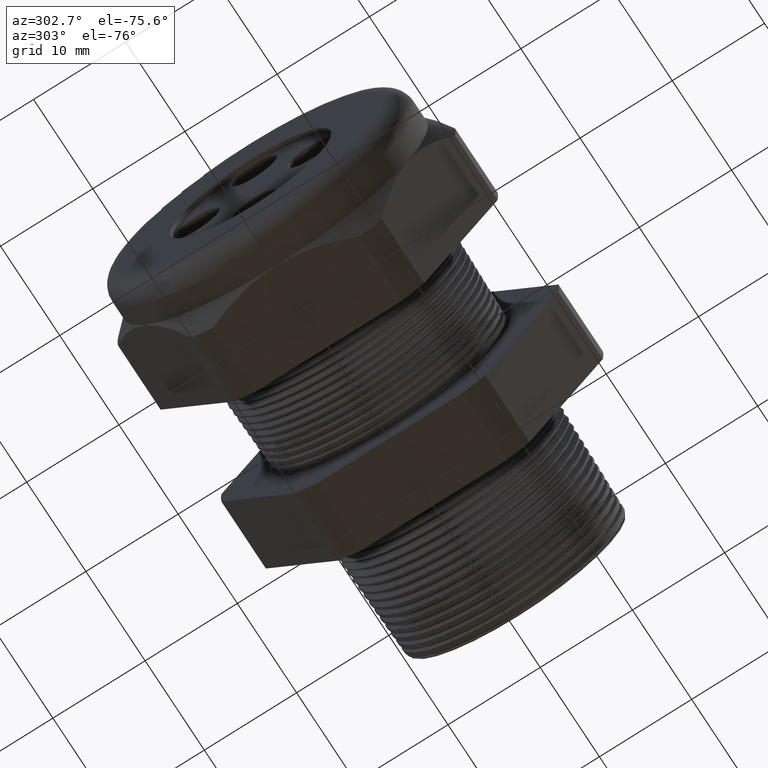
[diagram: clean part render]
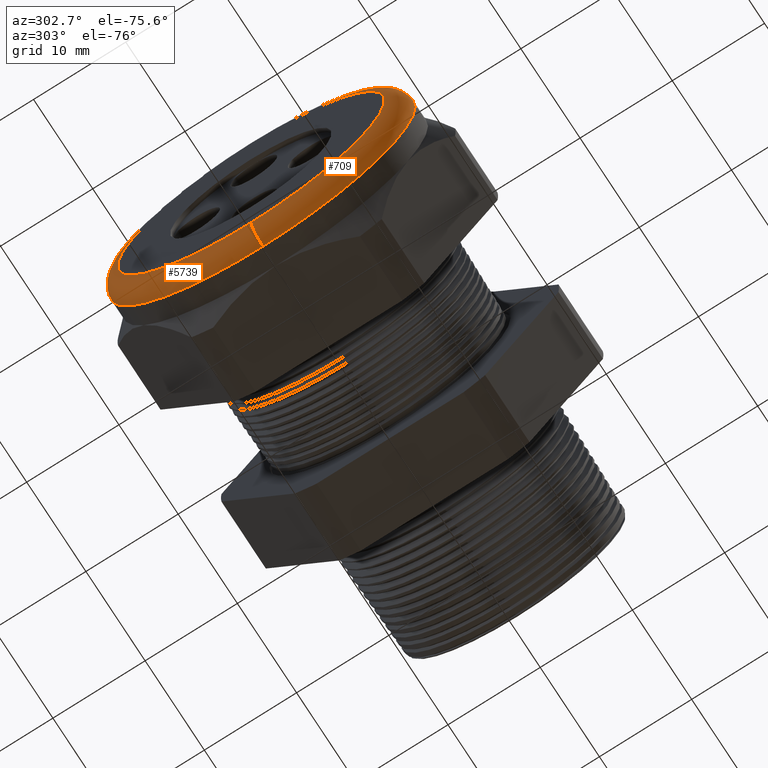
[diagram: same view with one multi-face feature highlighted, each face labeled with its STEP entity id]
A machine part, auxiliary view. The highlighted faces form ONE feature: a constant-radius fillet chain: 2 tangent blend faces with common blend radius 2.032 mm. The faces share edges in the B-rep.
Their STEP definitions:
[1] entity #5739 (Torus):
#4120 = CIRCLE ( 'NONE', #4182, 0.5699999999999999500 ) ;
#4121 = CARTESIAN_POINT ( 'NONE',  ( -1.529999999999999800, 0.0000000000000000000, 0.5699999999999999500 ) ) ;
#4156 = CARTESIAN_POINT ( 'NONE',  ( -1.449999999999999700, 7.960204194457794200E-017, 0.6499999999999999100 ) ) ;
#4162 = CARTESIAN_POINT ( 'NONE',  ( -1.529999999999999800, 7.470345474798854000E-017, -0.5699999999999999500 ) ) ;
#4163 = DIRECTION ( 'NONE',  ( 0.0000000000000000000, -1.224646799147353900E-016, 1.000000000000000000 ) ) ;
#4164 = DIRECTION ( 'NONE',  ( 0.0000000000000000000, 1.000000000000000000, 1.224646799147353200E-016 ) ) ;
#4165 = CARTESIAN_POINT ( 'NONE',  ( -1.449999999999999700, 6.980486755139912600E-017, -0.5699999999999999500 ) ) ;
#4166 = AXIS2_PLACEMENT_3D ( 'NONE', #4165, #4164, #4163 ) ;
#4167 = CIRCLE ( 'NONE', #4166, 0.07999999999999996000 ) ;
#4179 = DIRECTION ( 'NONE',  ( 0.0000000000000000000, 0.0000000000000000000, 1.000000000000000000 ) ) ;
#4180 = DIRECTION ( 'NONE',  ( -1.000000000000000000, 0.0000000000000000000, 0.0000000000000000000 ) ) ;
#4181 = CARTESIAN_POINT ( 'NONE',  ( -1.529999999999999800, 0.0000000000000000000, 0.0000000000000000000 ) ) ;
#4182 = AXIS2_PLACEMENT_3D ( 'NONE', #4181, #4180, #4179 ) ;
#4185 = DIRECTION ( 'NONE',  ( 0.0000000000000000000, 0.0000000000000000000, 1.000000000000000000 ) ) ;
#4186 = DIRECTION ( 'NONE',  ( -1.000000000000000000, 0.0000000000000000000, 0.0000000000000000000 ) ) ;
#4187 = AXIS2_PLACEMENT_3D ( 'NONE', #4195, #4186, #4185 ) ;
#4188 = TOROIDAL_SURFACE ( 'NONE', #4187, 0.5699999999999999500, 0.08000000000000000200 ) ;
#4189 = FACE_OUTER_BOUND ( 'NONE', #5733, .T. ) ;
#4195 = CARTESIAN_POINT ( 'NONE',  ( -1.449999999999999700, 0.0000000000000000000, 0.0000000000000000000 ) ) ;
#4207 = DIRECTION ( 'NONE',  ( 0.0000000000000000000, 0.0000000000000000000, 1.000000000000000000 ) ) ;
#4208 = DIRECTION ( 'NONE',  ( 1.000000000000000000, 0.0000000000000000000, 0.0000000000000000000 ) ) ;
#4209 = CARTESIAN_POINT ( 'NONE',  ( -1.449999999999999700, 0.0000000000000000000, 0.0000000000000000000 ) ) ;
#4210 = AXIS2_PLACEMENT_3D ( 'NONE', #4209, #4208, #4207 ) ;
#4211 = CIRCLE ( 'NONE', #4210, 0.6499999999999999100 ) ;
#4212 = CARTESIAN_POINT ( 'NONE',  ( -1.449999999999999700, 0.0000000000000000000, -0.6499999999999999100 ) ) ;
#4288 = DIRECTION ( 'NONE',  ( 0.0000000000000000000, 0.0000000000000000000, -1.000000000000000000 ) ) ;
#4289 = DIRECTION ( 'NONE',  ( 0.0000000000000000000, -1.000000000000000000, 0.0000000000000000000 ) ) ;
#4290 = CARTESIAN_POINT ( 'NONE',  ( -1.449999999999999700, 0.0000000000000000000, 0.5699999999999999500 ) ) ;
#4291 = AXIS2_PLACEMENT_3D ( 'NONE', #4290, #4289, #4288 ) ;
#4292 = CIRCLE ( 'NONE', #4291, 0.07999999999999996000 ) ;
#5694 = ORIENTED_EDGE ( 'NONE', *, *, #5783, .F. ) ;
#5708 = VERTEX_POINT ( 'NONE', #4121 ) ;
#5709 = EDGE_CURVE ( 'NONE', #5708, #5721, #4120, .T. ) ;
#5715 = ORIENTED_EDGE ( 'NONE', *, *, #5718, .T. ) ;
#5718 = EDGE_CURVE ( 'NONE', #5728, #5721, #4167, .T. ) ;
#5720 = ORIENTED_EDGE ( 'NONE', *, *, #5709, .F. ) ;
#5721 = VERTEX_POINT ( 'NONE', #4162 ) ;
#5723 = VERTEX_POINT ( 'NONE', #4156 ) ;
#5728 = VERTEX_POINT ( 'NONE', #4212 ) ;
#5731 = EDGE_CURVE ( 'NONE', #5728, #5723, #4211, .T. ) ;
#5733 = EDGE_LOOP ( 'NONE', ( #5735, #5715, #5720, #5694 ) ) ;
#5735 = ORIENTED_EDGE ( 'NONE', *, *, #5731, .F. ) ;
#5739 = ADVANCED_FACE ( 'NONE', ( #4189 ), #4188, .T. ) ;
#5783 = EDGE_CURVE ( 'NONE', #5723, #5708, #4292, .T. ) ;
[2] entity #709 (Torus):
#709 = ADVANCED_FACE ( 'NONE', ( #2675 ), #2673, .T. ) ;
#710 = EDGE_LOOP ( 'NONE', ( #711, #712, #713, #714 ) ) ;
#711 = ORIENTED_EDGE ( 'NONE', *, *, #5718, .F. ) ;
#712 = ORIENTED_EDGE ( 'NONE', *, *, #5698, .F. ) ;
#713 = ORIENTED_EDGE ( 'NONE', *, *, #5783, .T. ) ;
#714 = ORIENTED_EDGE ( 'NONE', *, *, #5734, .F. ) ;
#2673 = TOROIDAL_SURFACE ( 'NONE', #2674, 0.5699999999999999500, 0.08000000000000000200 ) ;
#2674 = AXIS2_PLACEMENT_3D ( 'NONE', #2679, #2737, #2736 ) ;
#2675 = FACE_OUTER_BOUND ( 'NONE', #710, .T. ) ;
#2679 = CARTESIAN_POINT ( 'NONE',  ( -1.449999999999999700, 0.0000000000000000000, 0.0000000000000000000 ) ) ;
#2736 = DIRECTION ( 'NONE',  ( 0.0000000000000000000, 0.0000000000000000000, 1.000000000000000000 ) ) ;
#2737 = DIRECTION ( 'NONE',  ( -1.000000000000000000, 0.0000000000000000000, 0.0000000000000000000 ) ) ;
#4121 = CARTESIAN_POINT ( 'NONE',  ( -1.529999999999999800, 0.0000000000000000000, 0.5699999999999999500 ) ) ;
#4129 = DIRECTION ( 'NONE',  ( 0.0000000000000000000, 0.0000000000000000000, 1.000000000000000000 ) ) ;
#4130 = DIRECTION ( 'NONE',  ( 1.000000000000000000, 0.0000000000000000000, 0.0000000000000000000 ) ) ;
#4131 = CARTESIAN_POINT ( 'NONE',  ( -1.449999999999999700, 0.0000000000000000000, 0.0000000000000000000 ) ) ;
#4132 = AXIS2_PLACEMENT_3D ( 'NONE', #4131, #4130, #4129 ) ;
#4133 = CIRCLE ( 'NONE', #4132, 0.6499999999999999100 ) ;
#4156 = CARTESIAN_POINT ( 'NONE',  ( -1.449999999999999700, 7.960204194457794200E-017, 0.6499999999999999100 ) ) ;
#4162 = CARTESIAN_POINT ( 'NONE',  ( -1.529999999999999800, 7.470345474798854000E-017, -0.5699999999999999500 ) ) ;
#4163 = DIRECTION ( 'NONE',  ( 0.0000000000000000000, -1.224646799147353900E-016, 1.000000000000000000 ) ) ;
#4164 = DIRECTION ( 'NONE',  ( 0.0000000000000000000, 1.000000000000000000, 1.224646799147353200E-016 ) ) ;
#4165 = CARTESIAN_POINT ( 'NONE',  ( -1.449999999999999700, 6.980486755139912600E-017, -0.5699999999999999500 ) ) ;
#4166 = AXIS2_PLACEMENT_3D ( 'NONE', #4165, #4164, #4163 ) ;
#4167 = CIRCLE ( 'NONE', #4166, 0.07999999999999996000 ) ;
#4202 = DIRECTION ( 'NONE',  ( 0.0000000000000000000, 0.0000000000000000000, 1.000000000000000000 ) ) ;
#4203 = DIRECTION ( 'NONE',  ( -1.000000000000000000, 0.0000000000000000000, 0.0000000000000000000 ) ) ;
#4204 = CARTESIAN_POINT ( 'NONE',  ( -1.529999999999999800, 0.0000000000000000000, 0.0000000000000000000 ) ) ;
#4205 = AXIS2_PLACEMENT_3D ( 'NONE', #4204, #4203, #4202 ) ;
#4206 = CIRCLE ( 'NONE', #4205, 0.5699999999999999500 ) ;
#4212 = CARTESIAN_POINT ( 'NONE',  ( -1.449999999999999700, 0.0000000000000000000, -0.6499999999999999100 ) ) ;
#4288 = DIRECTION ( 'NONE',  ( 0.0000000000000000000, 0.0000000000000000000, -1.000000000000000000 ) ) ;
#4289 = DIRECTION ( 'NONE',  ( 0.0000000000000000000, -1.000000000000000000, 0.0000000000000000000 ) ) ;
#4290 = CARTESIAN_POINT ( 'NONE',  ( -1.449999999999999700, 0.0000000000000000000, 0.5699999999999999500 ) ) ;
#4291 = AXIS2_PLACEMENT_3D ( 'NONE', #4290, #4289, #4288 ) ;
#4292 = CIRCLE ( 'NONE', #4291, 0.07999999999999996000 ) ;
#5698 = EDGE_CURVE ( 'NONE', #5723, #5728, #4133, .T. ) ;
#5708 = VERTEX_POINT ( 'NONE', #4121 ) ;
#5718 = EDGE_CURVE ( 'NONE', #5728, #5721, #4167, .T. ) ;
#5721 = VERTEX_POINT ( 'NONE', #4162 ) ;
#5723 = VERTEX_POINT ( 'NONE', #4156 ) ;
#5728 = VERTEX_POINT ( 'NONE', #4212 ) ;
#5734 = EDGE_CURVE ( 'NONE', #5721, #5708, #4206, .T. ) ;
#5783 = EDGE_CURVE ( 'NONE', #5723, #5708, #4292, .T. ) ;